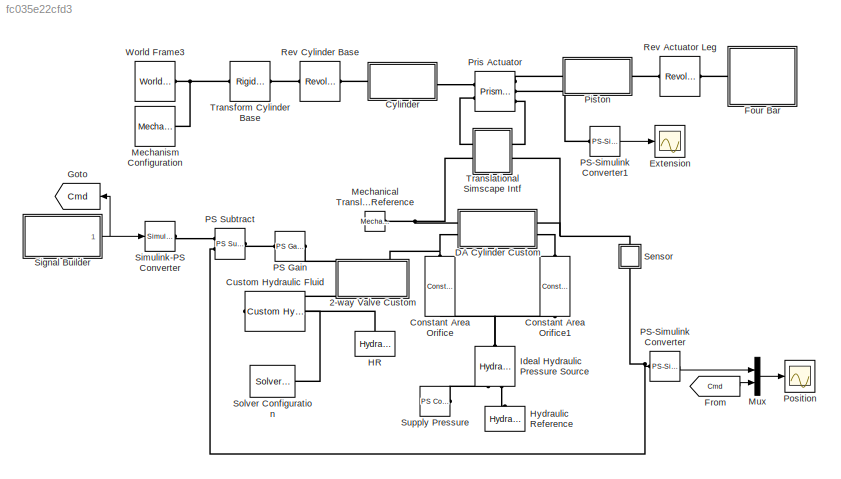
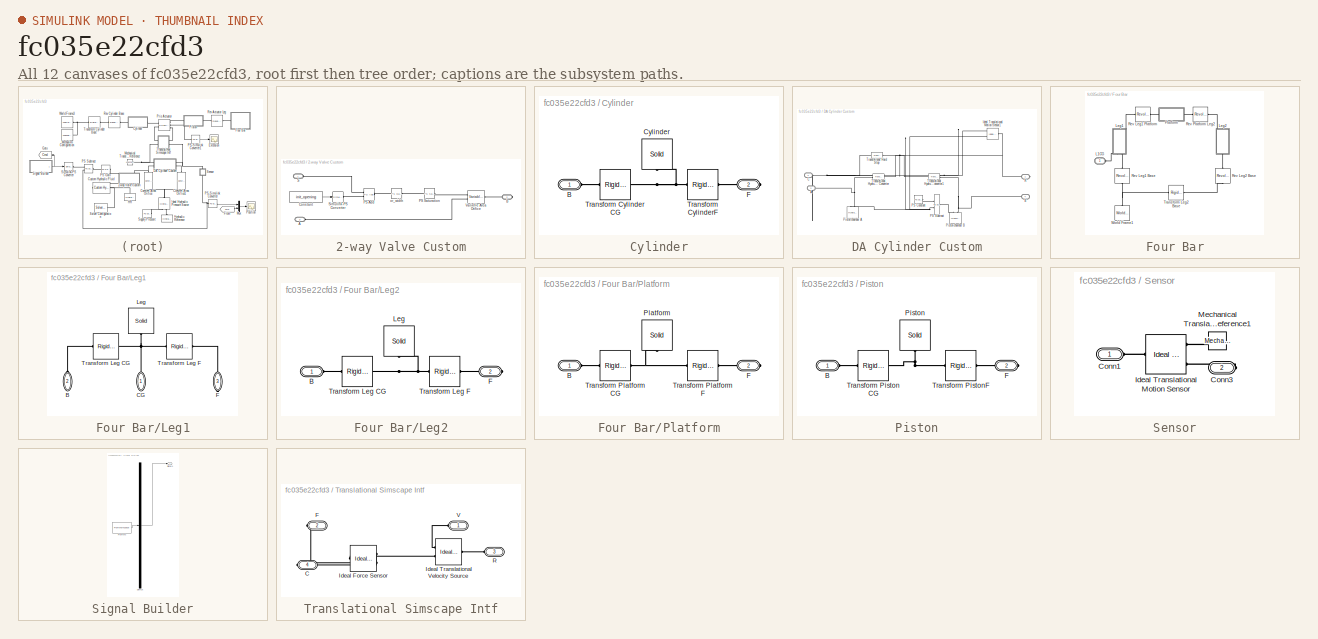
[diagram: thumbnail index - all 12 canvases of the model, root first then tree order]
MODEL slx_fc035e22cfd3
KIND model
CONFIG AbsTol = 1e-4
CONFIG FixedStep = auto
CONFIG MaxStep = auto
CONFIG MinStep = auto
CONFIG PostLoadFcn = warning off sm:compiler:state:UnsatisfiedDesiredTarget\nwarning off Simulink:Engine:UsingDefaultMaxStepSize\n
CONFIG PreLoadFcn = cylinder_length = 15;\npiston_length = 15;\nleg_length = 15;\nplatform_length = 25;\n
CONFIG RelTol = 1e-3
CONFIG SampleTimeConstraint = Unconstrained
CONFIG Solver = ode15s
CONFIG SolverMode = Auto
CONFIG SolverName = ode15s
CONFIG StartTime = 0.0
CONFIG StopTime = 10.0
BLOCK [SubSystem] 2-way Valve Custom
  Ports = [0, 0, 0, 0, 0, 2, 1]
  RequestExecContextInheritance = off
  Variant = off
BLOCK [PMIOPort] 2-way Valve Custom/A
  Port = 3
  Side = Left
BLOCK [PMIOPort] 2-way Valve Custom/B
  Port = 2
  Side = Right
BLOCK [Constant] 2-way Valve Custom/Constant
  Value = init_opening
BLOCK [Reference] 2-way Valve Custom/PS Add  REF=fl_lib/Physical Signals/Functions/PS Add
  Ports = [0, 0, 0, 0, 0, 2, 1]
  SourceBlock = fl_lib/Physical Signals/Functions/PS Add
  SourceType = PS Add
BLOCK [Reference] 2-way Valve Custom/PS Saturation  REF=fl_lib/Physical Signals/Nonlinear Operators/PS Saturation
  Ports = [0, 0, 0, 0, 0, 1, 1]
  SourceBlock = fl_lib/Physical Signals/Nonlinear Operators/PS Saturation
  SourceType = PS Saturation
BLOCK [PMIOPort] 2-way Valve Custom/S
  Port = 1
  Side = Left
BLOCK [Reference] 2-way Valve Custom/Simulink-PS Converter  REF=nesl_utility/Simulink-PS
Converter
  Ports = [1, 0, 0, 0, 0, 0, 1]
  SourceBlock = nesl_utility/Simulink-PS\nConverter
  SourceType = Simulink-PS\nConverter
BLOCK [Reference] 2-way Valve Custom/Variable Area Orifice  REF=fl_lib/Hydraulic/Hydraulic Elements/Variable Area
Hydraulic Orifice
  Ports = [0, 0, 0, 0, 0, 2, 1]
  SourceBlock = fl_lib/Hydraulic/Hydraulic Elements/Variable Area\nHydraulic Orifice
  SourceType = Variable Area\nHydraulic Orifice
BLOCK [Reference] 2-way Valve Custom/or_width  REF=fl_lib/Physical Signals/Functions/PS Gain
  Ports = [0, 0, 0, 0, 0, 1, 1]
  SourceBlock = fl_lib/Physical Signals/Functions/PS Gain
  SourceType = PS Gain
BLOCK [Reference] Constant Area Orifice  REF=fl_lib/Hydraulic/Hydraulic Elements/Constant Area
Hydraulic Orifice
  Ports = [0, 0, 0, 0, 0, 1, 1]
  SourceBlock = fl_lib/Hydraulic/Hydraulic Elements/Constant Area\nHydraulic Orifice
  SourceType = Constant Area\nHydraulic Orifice
BLOCK [Reference] Constant Area Orifice1  REF=fl_lib/Hydraulic/Hydraulic Elements/Constant Area
Hydraulic Orifice
  Ports = [0, 0, 0, 0, 0, 1, 1]
  SourceBlock = fl_lib/Hydraulic/Hydraulic Elements/Constant Area\nHydraulic Orifice
  SourceType = Constant Area\nHydraulic Orifice
BLOCK [Reference] Custom Hydraulic Fluid  REF=fl_lib/Hydraulic/Hydraulic Utilities/Custom Hydraulic
Fluid
  Ports = [0, 0, 0, 0, 0, 0, 1]
  SourceBlock = fl_lib/Hydraulic/Hydraulic Utilities/Custom Hydraulic\nFluid
  SourceType = Custom Hydraulic\nFluid
BLOCK [SubSystem] Cylinder
  Ports = [0, 0, 0, 0, 0, 1, 1]
  RequestExecContextInheritance = off
  Variant = off
BLOCK [PMIOPort] Cylinder/B
  Port = 1
  Side = Left
BLOCK [Reference] Cylinder/Cylinder  REF=sm_lib/Body Elements/Solid
  Ports = [0, 0, 0, 0, 0, 0, 1]
  SourceBlock = sm_lib/Body Elements/Solid
  SourceType = Solid
BLOCK [PMIOPort] Cylinder/F
  Port = 2
  Side = Right
BLOCK [Reference] Cylinder/Transform Cylinder CG  REF=sm_lib/Frames and
Transforms/Rigid
Transform
  Ports = [0, 0, 0, 0, 0, 1, 1]
  SourceBlock = sm_lib/Frames and\nTransforms/Rigid\nTransform
  SourceType = Rigid\nTransform
BLOCK [Reference] Cylinder/Transform CylinderF  REF=sm_lib/Frames and
Transforms/Rigid
Transform
  Ports = [0, 0, 0, 0, 0, 1, 1]
  SourceBlock = sm_lib/Frames and\nTransforms/Rigid\nTransform
  SourceType = Rigid\nTransform
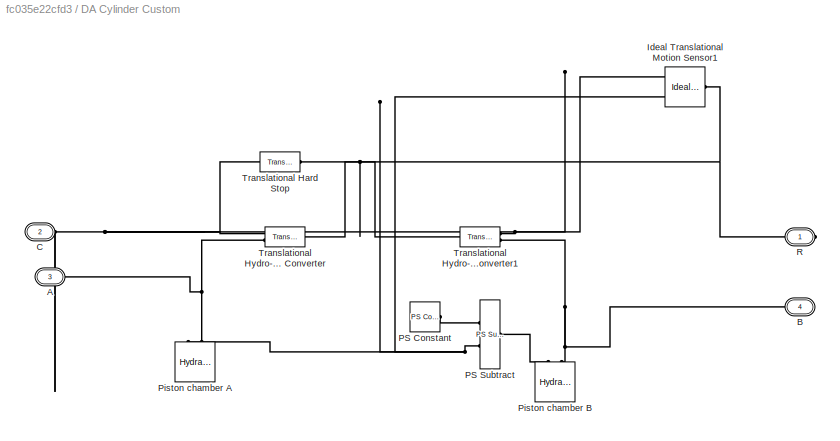
BLOCK [SubSystem] DA Cylinder Custom
  Ports = [0, 0, 0, 0, 0, 2, 2]
  RequestExecContextInheritance = off
  Variant = off
BLOCK [PMIOPort] DA Cylinder Custom/A
  Port = 3
  Side = Left
  Tag = PMCPort
BLOCK [PMIOPort] DA Cylinder Custom/B
  Port = 4
  Side = Right
  Tag = PMCPort
BLOCK [PMIOPort] DA Cylinder Custom/C
  Port = 2
  Side = Left
  Tag = PMCPort
BLOCK [Reference] DA Cylinder Custom/Ideal Translational Motion Sensor1  REF=fl_lib/Mechanical/Mechanical Sensors/Ideal Translational
Motion Sensor
  Ports = [0, 0, 0, 0, 0, 1, 3]
  SourceBlock = fl_lib/Mechanical/Mechanical Sensors/Ideal Translational\nMotion Sensor
  SourceType = Ideal Translational\nMotion Sensor
BLOCK [Reference] DA Cylinder Custom/PS Constant  REF=fl_lib/Physical Signals/Sources/PS Constant
  Ports = [0, 0, 0, 0, 0, 0, 1]
  SourceBlock = fl_lib/Physical Signals/Sources/PS Constant
  SourceType = PS Constant
BLOCK [Reference] DA Cylinder Custom/PS Subtract  REF=fl_lib/Physical Signals/Functions/PS Subtract
  Ports = [0, 0, 0, 0, 0, 2, 1]
  SourceBlock = fl_lib/Physical Signals/Functions/PS Subtract
  SourceType = PS Subtract
BLOCK [Reference] DA Cylinder Custom/Piston chamber A  REF=fl_lib/Hydraulic/Hydraulic Elements/Hydraulic Piston
Chamber
  Ports = [0, 0, 0, 0, 0, 2]
  SourceBlock = fl_lib/Hydraulic/Hydraulic Elements/Hydraulic Piston\nChamber
  SourceType = Hydraulic Piston\nChamber
BLOCK [Reference] DA Cylinder Custom/Piston chamber B  REF=fl_lib/Hydraulic/Hydraulic Elements/Hydraulic Piston
Chamber
  Ports = [0, 0, 0, 0, 0, 2]
  SourceBlock = fl_lib/Hydraulic/Hydraulic Elements/Hydraulic Piston\nChamber
  SourceType = Hydraulic Piston\nChamber
BLOCK [PMIOPort] DA Cylinder Custom/R
  Port = 1
  Side = Right
  Tag = PMCPort
BLOCK [Reference] DA Cylinder Custom/Translational Hard Stop  REF=fl_lib/Mechanical/Translational
Elements/Translational Hard
Stop
  Ports = [0, 0, 0, 0, 0, 1, 1]
  SourceBlock = fl_lib/Mechanical/Translational\nElements/Translational Hard\nStop
  SourceType = Translational Hard\nStop
BLOCK [Reference] DA Cylinder Custom/Translational Hydro-Mechanical Converter  REF=fl_lib/Hydraulic/Hydraulic Elements/Translational
Hydro-Mechanical
Converter
  Ports = [0, 0, 0, 0, 0, 2, 1]
  SourceBlock = fl_lib/Hydraulic/Hydraulic Elements/Translational\nHydro-Mechanical\nConverter
  SourceType = Translational\nHydro-Mechanical\nConverter
BLOCK [Reference] DA Cylinder Custom/Translational Hydro-Mechanical Converter1  REF=fl_lib/Hydraulic/Hydraulic Elements/Translational
Hydro-Mechanical
Converter
  Ports = [0, 0, 0, 0, 0, 2, 1]
  SourceBlock = fl_lib/Hydraulic/Hydraulic Elements/Translational\nHydro-Mechanical\nConverter
  SourceType = Translational\nHydro-Mechanical\nConverter
BLOCK [Scope] Extension
  Ports = [1]
  ScopeSpecificationString = Simulink.scopes.TimeScopeBlockCfg('CurrentConfiguration', extmgr.ConfigurationSet(extmgr.Configuration('Core','General UI',true),extmgr.Configuration('Core','Source UI',true),extmgr.Configuration('Sources','WiredSimulink',true,'DataLoggingVariableName','ScopeData1','DataLoggingSaveFormat','StructureWithTime','DataLoggingDecimation','1'),extmgr.Configuration('Visuals','Time Domain',true,'Serialized...<+1655ch>
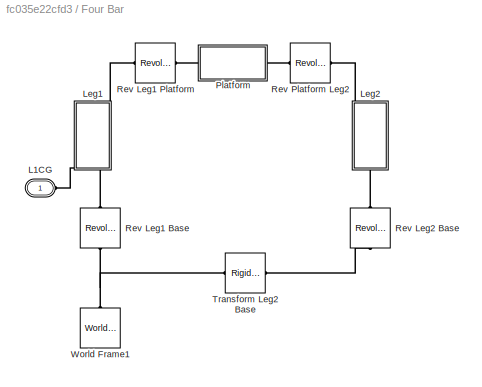
BLOCK [SubSystem] Four Bar
  Ports = [0, 0, 0, 0, 0, 1]
  RequestExecContextInheritance = off
  Variant = off
BLOCK [PMIOPort] Four Bar/L1CG
  Port = 1
  Side = Left
BLOCK [SubSystem] Four Bar/Leg1
  Ports = [0, 0, 0, 0, 0, 2, 1]
  RequestExecContextInheritance = off
  Variant = off
BLOCK [PMIOPort] Four Bar/Leg1/B
  Port = 2
  Side = Left
BLOCK [PMIOPort] Four Bar/Leg1/CG
  Port = 1
  Side = Left
BLOCK [PMIOPort] Four Bar/Leg1/F
  Port = 3
  Side = Right
BLOCK [Reference] Four Bar/Leg1/Leg  REF=sm_lib/Body Elements/Solid
  Ports = [0, 0, 0, 0, 0, 0, 1]
  SourceBlock = sm_lib/Body Elements/Solid
  SourceType = Solid
BLOCK [Reference] Four Bar/Leg1/Transform Leg CG  REF=sm_lib/Frames and
Transforms/Rigid
Transform
  Ports = [0, 0, 0, 0, 0, 1, 1]
  SourceBlock = sm_lib/Frames and\nTransforms/Rigid\nTransform
  SourceType = Rigid\nTransform
BLOCK [Reference] Four Bar/Leg1/Transform Leg F  REF=sm_lib/Frames and
Transforms/Rigid
Transform
  Ports = [0, 0, 0, 0, 0, 1, 1]
  SourceBlock = sm_lib/Frames and\nTransforms/Rigid\nTransform
  SourceType = Rigid\nTransform
BLOCK [SubSystem] Four Bar/Leg2
  Ports = [0, 0, 0, 0, 0, 1, 1]
  RequestExecContextInheritance = off
  Variant = off
BLOCK [PMIOPort] Four Bar/Leg2/B
  Port = 1
  Side = Left
BLOCK [PMIOPort] Four Bar/Leg2/F
  Port = 2
  Side = Right
BLOCK [Reference] Four Bar/Leg2/Leg  REF=sm_lib/Body Elements/Solid
  Ports = [0, 0, 0, 0, 0, 0, 1]
  SourceBlock = sm_lib/Body Elements/Solid
  SourceType = Solid
BLOCK [Reference] Four Bar/Leg2/Transform Leg CG  REF=sm_lib/Frames and
Transforms/Rigid
Transform
  Ports = [0, 0, 0, 0, 0, 1, 1]
  SourceBlock = sm_lib/Frames and\nTransforms/Rigid\nTransform
  SourceType = Rigid\nTransform
BLOCK [Reference] Four Bar/Leg2/Transform Leg F  REF=sm_lib/Frames and
Transforms/Rigid
Transform
  Ports = [0, 0, 0, 0, 0, 1, 1]
  SourceBlock = sm_lib/Frames and\nTransforms/Rigid\nTransform
  SourceType = Rigid\nTransform
BLOCK [SubSystem] Four Bar/Platform
  Ports = [0, 0, 0, 0, 0, 1, 1]
  RequestExecContextInheritance = off
  Variant = off
BLOCK [PMIOPort] Four Bar/Platform/B
  Port = 1
  Side = Left
BLOCK [PMIOPort] Four Bar/Platform/F
  Port = 2
  Side = Right
BLOCK [Reference] Four Bar/Platform/Platform  REF=sm_lib/Body Elements/Solid
  Ports = [0, 0, 0, 0, 0, 0, 1]
  SourceBlock = sm_lib/Body Elements/Solid
  SourceType = Solid
BLOCK [Reference] Four Bar/Platform/Transform Platform CG  REF=sm_lib/Frames and
Transforms/Rigid
Transform
  Ports = [0, 0, 0, 0, 0, 1, 1]
  SourceBlock = sm_lib/Frames and\nTransforms/Rigid\nTransform
  SourceType = Rigid\nTransform
BLOCK [Reference] Four Bar/Platform/Transform Platform F  REF=sm_lib/Frames and
Transforms/Rigid
Transform
  Ports = [0, 0, 0, 0, 0, 1, 1]
  SourceBlock = sm_lib/Frames and\nTransforms/Rigid\nTransform
  SourceType = Rigid\nTransform
BLOCK [Reference] Four Bar/Rev Leg1 Base  REF=sm_lib/Joints/Revolute Joint
  Ports = [0, 0, 0, 0, 0, 1, 1]
  SourceBlock = sm_lib/Joints/Revolute Joint
  SourceType = Revolute Joint
BLOCK [Reference] Four Bar/Rev Leg1 Platform  REF=sm_lib/Joints/Revolute Joint
  Ports = [0, 0, 0, 0, 0, 1, 1]
  SourceBlock = sm_lib/Joints/Revolute Joint
  SourceType = Revolute Joint
BLOCK [Reference] Four Bar/Rev Leg2 Base  REF=sm_lib/Joints/Revolute Joint
  Ports = [0, 0, 0, 0, 0, 1, 1]
  SourceBlock = sm_lib/Joints/Revolute Joint
  SourceType = Revolute Joint
BLOCK [Reference] Four Bar/Rev Platform Leg2  REF=sm_lib/Joints/Revolute Joint
  Ports = [0, 0, 0, 0, 0, 1, 1]
  SourceBlock = sm_lib/Joints/Revolute Joint
  SourceType = Revolute Joint
BLOCK [Reference] Four Bar/Transform Leg2 Base  REF=sm_lib/Frames and
Transforms/Rigid
Transform
  Ports = [0, 0, 0, 0, 0, 1, 1]
  SourceBlock = sm_lib/Frames and\nTransforms/Rigid\nTransform
  SourceType = Rigid\nTransform
BLOCK [Reference] Four Bar/World Frame1  REF=sm_lib/Frames and
Transforms/World Frame
  Ports = [0, 0, 0, 0, 0, 0, 1]
  SourceBlock = sm_lib/Frames and\nTransforms/World Frame
  SourceType = World Frame
BLOCK [From] From
  GotoTag = Cmd
BLOCK [Goto] Goto
  GotoTag = Cmd
BLOCK [Reference] HR  REF=fl_lib/Hydraulic/Hydraulic Elements/Hydraulic Reference
  Ports = [0, 0, 0, 0, 0, 1]
  SourceBlock = fl_lib/Hydraulic/Hydraulic Elements/Hydraulic Reference
  SourceType = Hydraulic Reference
  Tag = Factory Generic
BLOCK [Reference] Hydraulic Reference  REF=fl_lib/Hydraulic/Hydraulic Elements/Hydraulic Reference
  Ports = [0, 0, 0, 0, 0, 1]
  SourceBlock = fl_lib/Hydraulic/Hydraulic Elements/Hydraulic Reference
  SourceType = Hydraulic Reference
  Tag = Factory Generic
BLOCK [Reference] Ideal Hydraulic Pressure Source  REF=fl_lib/Hydraulic/Hydraulic Sources/Hydraulic Pressure
Source
  Ports = [0, 0, 0, 0, 0, 1, 2]
  SourceBlock = fl_lib/Hydraulic/Hydraulic Sources/Hydraulic Pressure\nSource
  SourceType = Hydraulic Pressure\nSource
  Tag = Factory Generic
BLOCK [Reference] Mechanical Translational Reference  REF=fl_lib/Mechanical/Translational
Elements/Mechanical
Translational
Reference
  Ports = [0, 0, 0, 0, 0, 1]
  SourceBlock = fl_lib/Mechanical/Translational\nElements/Mechanical\nTranslational\nReference
  SourceType = Mechanical\nTranslational\nReference
  Tag = Factory Generic
BLOCK [Reference] Mechanism Configuration  REF=sm_lib/Utilities/Mechanism
Configuration
  Ports = [0, 0, 0, 0, 0, 0, 1]
  SourceBlock = sm_lib/Utilities/Mechanism\nConfiguration
  SourceType = Mechanism\nConfiguration
BLOCK [Mux] Mux
  DisplayOption = bar
  Inputs = 2
  Ports = [2, 1]
BLOCK [Reference] PS Gain  REF=fl_lib/Physical Signals/Functions/PS Gain
  Ports = [0, 0, 0, 0, 0, 1, 1]
  SourceBlock = fl_lib/Physical Signals/Functions/PS Gain
  SourceType = PS Gain
  Tag = Factory Generic
BLOCK [Reference] PS Subtract  REF=fl_lib/Physical Signals/Functions/PS Subtract
  Ports = [0, 0, 0, 0, 0, 2, 1]
  SourceBlock = fl_lib/Physical Signals/Functions/PS Subtract
  SourceType = PS Subtract
  Tag = Factory Generic
BLOCK [Reference] PS-Simulink Converter  REF=nesl_utility/PS-Simulink
Converter
  Ports = [0, 1, 0, 0, 0, 1]
  SourceBlock = nesl_utility/PS-Simulink\nConverter
  SourceType = PS-Simulink\nConverter
BLOCK [Reference] PS-Simulink Converter1  REF=nesl_utility/PS-Simulink
Converter
  Ports = [0, 1, 0, 0, 0, 1]
  SourceBlock = nesl_utility/PS-Simulink\nConverter
  SourceType = PS-Simulink\nConverter
BLOCK [SubSystem] Piston
  Ports = [0, 0, 0, 0, 0, 1, 1]
  RequestExecContextInheritance = off
  Variant = off
BLOCK [PMIOPort] Piston/B
  Port = 1
  Side = Left
BLOCK [PMIOPort] Piston/F
  Port = 2
  Side = Right
BLOCK [Reference] Piston/Piston  REF=sm_lib/Body Elements/Solid
  Ports = [0, 0, 0, 0, 0, 0, 1]
  SourceBlock = sm_lib/Body Elements/Solid
  SourceType = Solid
BLOCK [Reference] Piston/Transform Piston CG  REF=sm_lib/Frames and
Transforms/Rigid
Transform
  Ports = [0, 0, 0, 0, 0, 1, 1]
  SourceBlock = sm_lib/Frames and\nTransforms/Rigid\nTransform
  SourceType = Rigid\nTransform
BLOCK [Reference] Piston/Transform PistonF  REF=sm_lib/Frames and
Transforms/Rigid
Transform
  Ports = [0, 0, 0, 0, 0, 1, 1]
  SourceBlock = sm_lib/Frames and\nTransforms/Rigid\nTransform
  SourceType = Rigid\nTransform
BLOCK [Scope] Position
  Ports = [1]
  ScopeSpecificationString = Simulink.scopes.TimeScopeBlockCfg('CurrentConfiguration', extmgr.ConfigurationSet(extmgr.Configuration('Core','General UI',true,'FigureColor',[0.501960784313725 0.501960784313725 0.501960784313725]),extmgr.Configuration('Core','Source UI',true),extmgr.Configuration('Sources','WiredSimulink',true,'DataLoggingSaveFormat','StructureWithTime','DataLoggingMaxPoints','50000','DataLoggingLimitDataPoints'...<+2704ch>
BLOCK [Reference] Pris Actuator  REF=sm_lib/Joints/Prismatic
Joint
  Ports = [0, 0, 0, 0, 0, 2, 3]
  SourceBlock = sm_lib/Joints/Prismatic\nJoint
  SourceType = Prismatic\nJoint
BLOCK [Reference] Rev Actuator Leg  REF=sm_lib/Joints/Revolute Joint
  Ports = [0, 0, 0, 0, 0, 1, 1]
  SourceBlock = sm_lib/Joints/Revolute Joint
  SourceType = Revolute Joint
BLOCK [Reference] Rev Cylinder Base  REF=sm_lib/Joints/Revolute Joint
  Ports = [0, 0, 0, 0, 0, 1, 1]
  SourceBlock = sm_lib/Joints/Revolute Joint
  SourceType = Revolute Joint
BLOCK [SubSystem] Sensor
  Ports = [0, 0, 0, 0, 0, 1, 1]
  RequestExecContextInheritance = off
  Variant = off
BLOCK [PMIOPort] Sensor/Conn1
  Port = 1
  Side = Left
BLOCK [PMIOPort] Sensor/Conn3
  Port = 2
  Side = Right
BLOCK [Reference] Sensor/Ideal Translational Motion Sensor  REF=fl_lib/Mechanical/Mechanical Sensors/Ideal Translational
Motion Sensor
  Ports = [0, 0, 0, 0, 0, 1, 3]
  SourceBlock = fl_lib/Mechanical/Mechanical Sensors/Ideal Translational\nMotion Sensor
  SourceType = Ideal Translational\nMotion Sensor
  Tag = Factory Generic
BLOCK [Reference] Sensor/Mechanical Translational Reference1  REF=fl_lib/Mechanical/Translational
Elements/Mechanical
Translational
Reference
  Ports = [0, 0, 0, 0, 0, 1]
  SourceBlock = fl_lib/Mechanical/Translational\nElements/Mechanical\nTranslational\nReference
  SourceType = Mechanical\nTranslational\nReference
  Tag = Factory Generic
BLOCK [SubSystem] Signal Builder
  ClipboardFcn = sigbuilder_block('clipboard');
  CloseFcn = sigbuilder_block('close');
  ContinueFcn = sigbuilder_block('continue')
  CopyFcn = sigbuilder_block('copy');
  DeleteFcn = sigbuilder_block('delete');
  LoadFcn = sigbuilder_block('load');
  MaskHideContents = on
  ModelCloseFcn = sigbuilder_block('modelClose');
  NameChangeFcn = sigbuilder_block('namechange');
  OpenFcn = sigbuilder_block('open',[220.966 195.517 486 293.586 ]);
  PauseFcn = sigbuilder_block('pause')
  Ports = [0, 1]
  PreSaveFcn = sigbuilder_block('preSave');
  RequestExecContextInheritance = off
  StartFcn = sigbuilder_block('start');
  StopFcn = sigbuilder_block('stop');
  Tag = STV Subsys
  Variant = off
BLOCK [Demux] Signal Builder/Demux
  Outputs = 1
  Ports = [1, 1]
  Tag = STV Demux
BLOCK [FromWorkspace] Signal Builder/FromWs
  SampleTime = 0
  Tag = STV FromWs
  VariableName = tuvar
  ZeroCross = on
BLOCK [Outport] Signal Builder/Signal 1
  IconDisplay = Port number
  Tag = STV Outport
BLOCK [Reference] Simulink-PS Converter  REF=nesl_utility/Simulink-PS
Converter
  Ports = [1, 0, 0, 0, 0, 0, 1]
  SourceBlock = nesl_utility/Simulink-PS\nConverter
  SourceType = Simulink-PS\nConverter
BLOCK [Reference] Solver Configuration  REF=nesl_utility/Solver
Configuration
  Ports = [0, 0, 0, 0, 0, 0, 1]
  SourceBlock = nesl_utility/Solver\nConfiguration
  SourceType = Solver\nConfiguration
BLOCK [Reference] Supply Pressure  REF=fl_lib/Physical Signals/Sources/PS Constant
  Ports = [0, 0, 0, 0, 0, 0, 1]
  SourceBlock = fl_lib/Physical Signals/Sources/PS Constant
  SourceType = PS Constant
BLOCK [Reference] Transform Cylinder Base  REF=sm_lib/Frames and
Transforms/Rigid
Transform
  Ports = [0, 0, 0, 0, 0, 1, 1]
  SourceBlock = sm_lib/Frames and\nTransforms/Rigid\nTransform
  SourceType = Rigid\nTransform
BLOCK [SubSystem] Translational Simscape Intf
  Ports = [0, 0, 0, 0, 0, 2, 2]
  RequestExecContextInheritance = off
  Variant = off
BLOCK [PMIOPort] Translational Simscape Intf/C
  Port = 4
  Side = Right
BLOCK [PMIOPort] Translational Simscape Intf/F
  Port = 2
  Side = Right
BLOCK [Reference] Translational Simscape Intf/Ideal Force Sensor  REF=fl_lib/Mechanical/Mechanical Sensors/Ideal Force Sensor
  Ports = [0, 0, 0, 0, 0, 1, 2]
  SourceBlock = fl_lib/Mechanical/Mechanical Sensors/Ideal Force Sensor
  SourceType = Ideal Force Sensor
BLOCK [Reference] Translational Simscape Intf/Ideal Translational Velocity Source  REF=fl_lib/Mechanical/Mechanical Sources/Ideal Translational
Velocity Source
  Ports = [0, 0, 0, 0, 0, 1, 2]
  SourceBlock = fl_lib/Mechanical/Mechanical Sources/Ideal Translational\nVelocity Source
  SourceType = Ideal Translational\nVelocity Source
BLOCK [PMIOPort] Translational Simscape Intf/R
  Port = 3
  Side = Left
BLOCK [PMIOPort] Translational Simscape Intf/V
  Port = 1
  Side = Left
BLOCK [Reference] World Frame3  REF=sm_lib/Frames and
Transforms/World Frame
  Ports = [0, 0, 0, 0, 0, 0, 1]
  SourceBlock = sm_lib/Frames and\nTransforms/World Frame
  SourceType = World Frame
LINE 2-way Valve Custom/Constant:1 -> 2-way Valve Custom/Simulink-PS Converter:1
LINE From:1 -> Mux:2
LINE Mux:1 -> Position:1
LINE PS-Simulink Converter1:1 -> Extension:1
LINE PS-Simulink Converter:1 -> Mux:1
LINE Signal Builder/Demux:1 -> Signal Builder/Signal 1:1
LINE Signal Builder/FromWs:1 -> Signal Builder/Demux:1
NET Signal Builder:1 -> Goto:1, Simulink-PS Converter:1
PLINE 2-way Valve Custom/A:RConn1 -- 2-way Valve Custom/Variable Area Orifice:LConn2
PLINE 2-way Valve Custom/B:RConn1 -- 2-way Valve Custom/Variable Area Orifice:RConn1
PLINE 2-way Valve Custom/PS Add:LConn1 -- 2-way Valve Custom/S:RConn1
PLINE 2-way Valve Custom/PS Add:LConn2 -- 2-way Valve Custom/Simulink-PS Converter:RConn1
PLINE 2-way Valve Custom/PS Add:RConn1 -- 2-way Valve Custom/or_width:LConn1
PLINE 2-way Valve Custom/PS Saturation:LConn1 -- 2-way Valve Custom/or_width:RConn1
PLINE 2-way Valve Custom/PS Saturation:RConn1 -- 2-way Valve Custom/Variable Area Orifice:LConn1
PLINE 2-way Valve Custom:LConn1 -- PS Gain:RConn1
PNET net1: 2-way Valve Custom:LConn2 -- Constant Area Orifice:RConn1 -- DA Cylinder Custom:LConn2
PNET net2: 2-way Valve Custom:RConn1 -- Custom Hydraulic Fluid:RConn1 -- HR:LConn1 -- Solver Configuration:RConn1
PLINE Constant Area Orifice1:LConn1 -- DA Cylinder Custom:RConn2
PNET net3: Constant Area Orifice1:RConn1 -- Constant Area Orifice:LConn1 -- Ideal Hydraulic Pressure Source:LConn1
PLINE Cylinder/B:RConn1 -- Cylinder/Transform Cylinder CG:LConn1
PNET net4: Cylinder/Cylinder:RConn1 -- Cylinder/Transform Cylinder CG:RConn1 -- Cylinder/Transform CylinderF:LConn1
PLINE Cylinder/F:RConn1 -- Cylinder/Transform CylinderF:RConn1
PLINE Cylinder:LConn1 -- Rev Cylinder Base:RConn1
PLINE Cylinder:RConn1 -- Pris Actuator:LConn1
PNET net5: DA Cylinder Custom/A:RConn1 -- DA Cylinder Custom/Piston chamber A:LConn2 -- DA Cylinder Custom/Translational Hydro-Mechanical Converter:LConn2
PNET net6: DA Cylinder Custom/B:RConn1 -- DA Cylinder Custom/Piston chamber B:LConn2 -- DA Cylinder Custom/Translational Hydro-Mechanical Converter1:LConn2
PNET net7: DA Cylinder Custom/C:RConn1 -- DA Cylinder Custom/Ideal Translational Motion Sensor1:RConn1 -- DA Cylinder Custom/Translational Hard Stop:RConn1 -- DA Cylinder Custom/Translational Hydro-Mechanical Converter1:LConn1 -- DA Cylinder Custom/Translational Hydro-Mechanical Converter:LConn1
PNET net8: DA Cylinder Custom/Ideal Translational Motion Sensor1:LConn1 -- DA Cylinder Custom/R:RConn1 -- DA Cylinder Custom/Translational Hard Stop:LConn1 -- DA Cylinder Custom/Translational Hydro-Mechanical Converter1:RConn1 -- DA Cylinder Custom/Translational Hydro-Mechanical Converter:RConn1
PNET net9: DA Cylinder Custom/Ideal Translational Motion Sensor1:RConn3 -- DA Cylinder Custom/PS Subtract:LConn2 -- DA Cylinder Custom/Piston chamber A:LConn1
PLINE DA Cylinder Custom/PS Constant:RConn1 -- DA Cylinder Custom/PS Subtract:LConn1
PLINE DA Cylinder Custom/PS Subtract:RConn1 -- DA Cylinder Custom/Piston chamber B:LConn1
PNET net10: DA Cylinder Custom:LConn1 -- Mechanical Translational Reference:LConn1 -- Translational Simscape Intf:RConn2
PNET net11: DA Cylinder Custom:RConn1 -- Sensor:LConn1 -- Translational Simscape Intf:LConn2
PLINE Four Bar/L1CG:RConn1 -- Four Bar/Leg1:LConn1
PLINE Four Bar/Leg1/B:RConn1 -- Four Bar/Leg1/Transform Leg CG:LConn1
PNET net12: Four Bar/Leg1/CG:RConn1 -- Four Bar/Leg1/Leg:RConn1 -- Four Bar/Leg1/Transform Leg CG:RConn1 -- Four Bar/Leg1/Transform Leg F:LConn1
PLINE Four Bar/Leg1/F:RConn1 -- Four Bar/Leg1/Transform Leg F:RConn1
PLINE Four Bar/Leg1:LConn2 -- Four Bar/Rev Leg1 Base:RConn1
PLINE Four Bar/Leg1:RConn1 -- Four Bar/Rev Leg1 Platform:LConn1
PLINE Four Bar/Leg2/B:RConn1 -- Four Bar/Leg2/Transform Leg CG:LConn1
PLINE Four Bar/Leg2/F:RConn1 -- Four Bar/Leg2/Transform Leg F:RConn1
PNET net13: Four Bar/Leg2/Leg:RConn1 -- Four Bar/Leg2/Transform Leg CG:RConn1 -- Four Bar/Leg2/Transform Leg F:LConn1
PLINE Four Bar/Leg2:LConn1 -- Four Bar/Rev Platform Leg2:RConn1
PLINE Four Bar/Leg2:RConn1 -- Four Bar/Rev Leg2 Base:LConn1
PLINE Four Bar/Platform/B:RConn1 -- Four Bar/Platform/Transform Platform CG:LConn1
PLINE Four Bar/Platform/F:RConn1 -- Four Bar/Platform/Transform Platform F:RConn1
PNET net14: Four Bar/Platform/Platform:RConn1 -- Four Bar/Platform/Transform Platform CG:RConn1 -- Four Bar/Platform/Transform Platform F:LConn1
PLINE Four Bar/Platform:LConn1 -- Four Bar/Rev Leg1 Platform:RConn1
PLINE Four Bar/Platform:RConn1 -- Four Bar/Rev Platform Leg2:LConn1
PNET net15: Four Bar/Rev Leg1 Base:LConn1 -- Four Bar/Transform Leg2 Base:LConn1 -- Four Bar/World Frame1:RConn1
PLINE Four Bar/Rev Leg2 Base:RConn1 -- Four Bar/Transform Leg2 Base:RConn1
PLINE Four Bar:LConn1 -- Rev Actuator Leg:RConn1
PLINE Hydraulic Reference:LConn1 -- Ideal Hydraulic Pressure Source:RConn2
PLINE Ideal Hydraulic Pressure Source:RConn1 -- Supply Pressure:RConn1
PNET net16: Mechanism Configuration:RConn1 -- Transform Cylinder Base:LConn1 -- World Frame3:RConn1
PLINE PS Gain:LConn1 -- PS Subtract:RConn1
PLINE PS Subtract:LConn1 -- Simulink-PS Converter:RConn1
PNET net17: PS Subtract:LConn2 -- PS-Simulink Converter:LConn1 -- Sensor:RConn1
PLINE PS-Simulink Converter1:LConn1 -- Pris Actuator:RConn2
PLINE Piston/B:RConn1 -- Piston/Transform Piston CG:LConn1
PLINE Piston/F:RConn1 -- Piston/Transform PistonF:RConn1
PNET net18: Piston/Piston:RConn1 -- Piston/Transform Piston CG:RConn1 -- Piston/Transform PistonF:LConn1
PLINE Piston:LConn1 -- Pris Actuator:RConn1
PLINE Piston:RConn1 -- Rev Actuator Leg:LConn1
PLINE Pris Actuator:LConn2 -- Translational Simscape Intf:RConn1
PLINE Pris Actuator:RConn3 -- Translational Simscape Intf:LConn1
PLINE Rev Cylinder Base:LConn1 -- Transform Cylinder Base:RConn1
PLINE Sensor/Conn1:RConn1 -- Sensor/Ideal Translational Motion Sensor:LConn1
PLINE Sensor/Conn3:RConn1 -- Sensor/Ideal Translational Motion Sensor:RConn3
PLINE Sensor/Ideal Translational Motion Sensor:RConn1 -- Sensor/Mechanical Translational Reference1:LConn1
PLINE Translational Simscape Intf/C:RConn1 -- Translational Simscape Intf/Ideal Force Sensor:RConn1
PLINE Translational Simscape Intf/F:RConn1 -- Translational Simscape Intf/Ideal Force Sensor:RConn2
PLINE Translational Simscape Intf/Ideal Force Sensor:LConn1 -- Translational Simscape Intf/Ideal Translational Velocity Source:RConn2
PLINE Translational Simscape Intf/Ideal Translational Velocity Source:LConn1 -- Translational Simscape Intf/R:RConn1
PLINE Translational Simscape Intf/Ideal Translational Velocity Source:RConn1 -- Translational Simscape Intf/V:RConn1
note: NET lines group one-source signal fan-out (src -> all destinations, sorted); 1:1 wires keep LINE; PNET lines group multi-terminal physical nets as a canonical sorted terminal list (undirected conserving connections); 2-terminal nets keep the pairwise PLINE form
